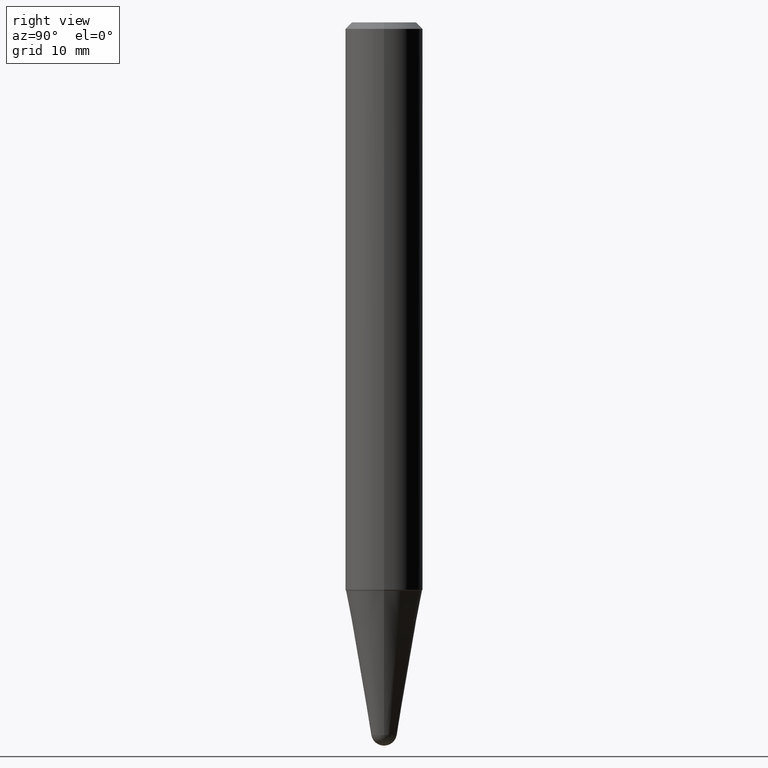
[diagram: clean part render]
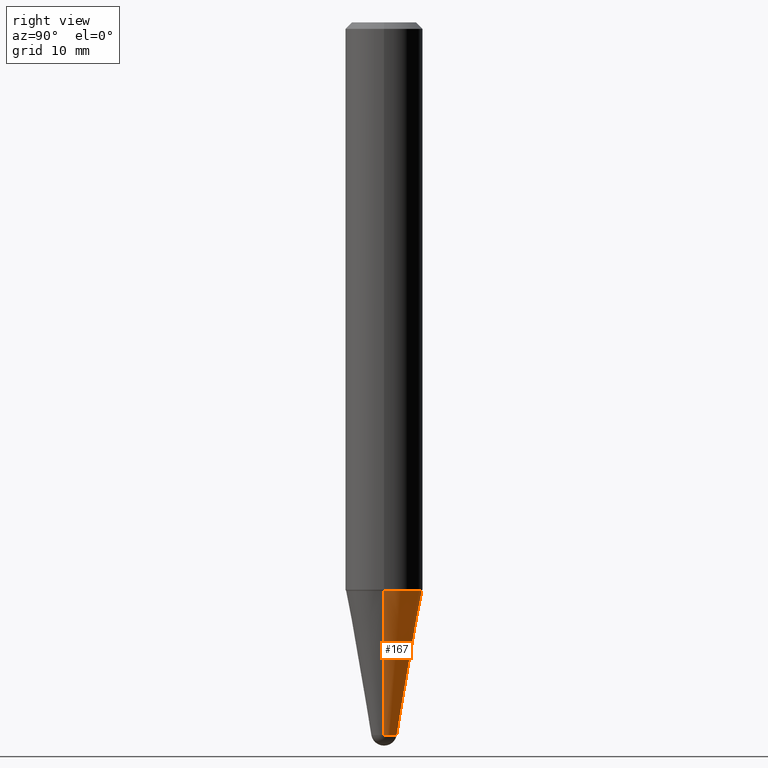
[diagram: same view with one face highlighted and labeled with its STEP entity id]
A machine part, right view. The second image highlights one B-rep face of the part: STEP entity #167.
In plain terms, the highlighted conical surface has half-angle 10 deg.
Its self-contained STEP definition (entity closure, byte-faithful):
#9 = DIRECTION ( 'NONE',  ( -0.1736481776669304145, 4.672282404182340767E-15, 0.9848077530122080203 ) ) ;
#14 = CIRCLE ( 'NONE', #275, 0.06155048456326336903 ) ;
#24 = DIRECTION ( 'NONE',  ( 1.000000000000000000, -6.982962677686260400E-15, 0.000000000000000000 ) ) ;
#25 = EDGE_CURVE ( 'NONE', #109, #199, #164, .T. ) ;
#30 = FACE_OUTER_BOUND ( 'NONE', #272, .T. ) ;
#31 = VECTOR ( 'NONE', #9, 39.37007874015748854 ) ;
#33 = CARTESIAN_POINT ( 'NONE',  ( 0.06155048456326336903, -1.168045736915459686E-14, -3.448353011104182908 ) ) ;
#44 = CARTESIAN_POINT ( 'NONE',  ( 0.1846889624799291363, -1.089124981379659235E-14, -2.750000000000000000 ) ) ;
#45 = CARTESIAN_POINT ( 'NONE',  ( -0.06155048456326336903, -1.160251769112441577E-14, -3.448353011104182908 ) ) ;
#51 = ORIENTED_EDGE ( 'NONE', *, *, #273, .F. ) ;
#63 = DIRECTION ( 'NONE',  ( -2.445468806185136597E-29, 3.491481338843145583E-15, 1.000000000000000000 ) ) ;
#65 = LINE ( 'NONE', #319, #126 ) ;
#77 = DIRECTION ( 'NONE',  ( -2.445468806185136597E-29, 3.491481338843145583E-15, 1.000000000000000000 ) ) ;
#82 = VERTEX_POINT ( 'NONE', #348 ) ;
#99 = CARTESIAN_POINT ( 'NONE',  ( 6.725039217009124520E-29, -9.601573681818649859E-15, -2.750000000000000000 ) ) ;
#100 = ORIENTED_EDGE ( 'NONE', *, *, #159, .T. ) ;
#101 = CIRCLE ( 'NONE', #243, 0.06155048456326336903 ) ;
#109 = VERTEX_POINT ( 'NONE', #239 ) ;
#120 = AXIS2_PLACEMENT_3D ( 'NONE', #169, #246, #317 ) ;
#126 = VECTOR ( 'NONE', #177, 39.37007874015748854 ) ;
#133 = CARTESIAN_POINT ( 'NONE',  ( -0.1846889624799291363, -8.289279675166815415E-15, -2.750000000000000000 ) ) ;
#146 = DIRECTION ( 'NONE',  ( -2.445468806185136597E-29, 3.491481338843145583E-15, 1.000000000000000000 ) ) ;
#157 = ORIENTED_EDGE ( 'NONE', *, *, #251, .T. ) ;
#159 = EDGE_CURVE ( 'NONE', #265, #82, #101, .T. ) ;
#161 = CONICAL_SURFACE ( 'NONE', #120, 0.06155048456326336903, 0.1745329251994330311 ) ;
#164 = LINE ( 'NONE', #45, #31 ) ;
#167 = ADVANCED_FACE ( 'NONE', ( #30 ), #161, .T. ) ;
#169 = CARTESIAN_POINT ( 'NONE',  ( 8.432839721369867924E-29, -1.203986018801382488E-14, -3.448353011104182908 ) ) ;
#177 = DIRECTION ( 'NONE',  ( 0.1736481776669304145, 2.225859148293765253E-15, 0.9848077530122080203 ) ) ;
#199 = VERTEX_POINT ( 'NONE', #133 ) ;
#216 = DIRECTION ( 'NONE',  ( 1.000000000000000000, -6.982962677686260400E-15, 0.000000000000000000 ) ) ;
#239 = CARTESIAN_POINT ( 'NONE',  ( -0.06155048456326336903, -9.945898683145615595E-15, -3.448353011104182908 ) ) ;
#241 = CARTESIAN_POINT ( 'NONE',  ( 8.432839721369867924E-29, -1.203986018801382488E-14, -3.448353011104182908 ) ) ;
#243 = AXIS2_PLACEMENT_3D ( 'NONE', #241, #63, #24 ) ;
#246 = DIRECTION ( 'NONE',  ( -2.445468806185136597E-29, 3.491481338843145583E-15, 1.000000000000000000 ) ) ;
#249 = CIRCLE ( 'NONE', #430, 0.1846889624799291363 ) ;
#251 = EDGE_CURVE ( 'NONE', #82, #109, #14, .T. ) ;
#265 = VERTEX_POINT ( 'NONE', #33 ) ;
#272 = EDGE_LOOP ( 'NONE', ( #157, #398, #372, #51, #100 ) ) ;
#273 = EDGE_CURVE ( 'NONE', #265, #447, #65, .T. ) ;
#275 = AXIS2_PLACEMENT_3D ( 'NONE', #461, #146, #216 ) ;
#279 = EDGE_CURVE ( 'NONE', #447, #199, #249, .T. ) ;
#317 = DIRECTION ( 'NONE',  ( 1.000000000000000000, -6.982962677686260400E-15, 0.000000000000000000 ) ) ;
#319 = CARTESIAN_POINT ( 'NONE',  ( 0.06155048456326336903, -1.246966492451259664E-14, -3.448353011104182908 ) ) ;
#348 = CARTESIAN_POINT ( 'NONE',  ( 4.298047364988575990E-16, 0.06155048456325139944, -3.448353011104182908 ) ) ;
#360 = DIRECTION ( 'NONE',  ( 1.000000000000000000, -6.982962677686268288E-15, 0.000000000000000000 ) ) ;
#372 = ORIENTED_EDGE ( 'NONE', *, *, #279, .F. ) ;
#398 = ORIENTED_EDGE ( 'NONE', *, *, #25, .T. ) ;
#430 = AXIS2_PLACEMENT_3D ( 'NONE', #99, #77, #360 ) ;
#447 = VERTEX_POINT ( 'NONE', #44 ) ;
#461 = CARTESIAN_POINT ( 'NONE',  ( 8.432839721369867924E-29, -1.203986018801382488E-14, -3.448353011104182908 ) ) ;